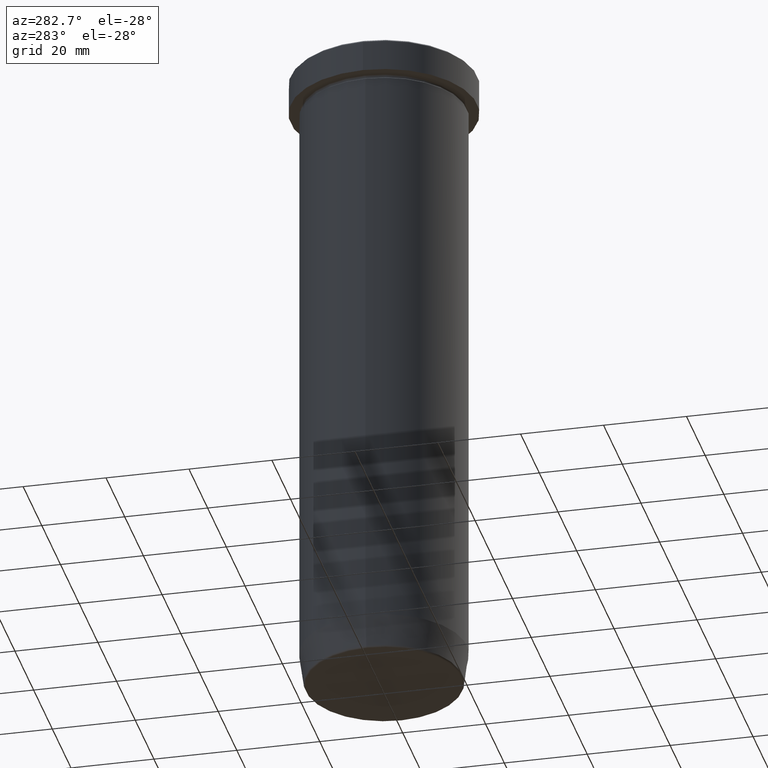
[diagram: clean part render]
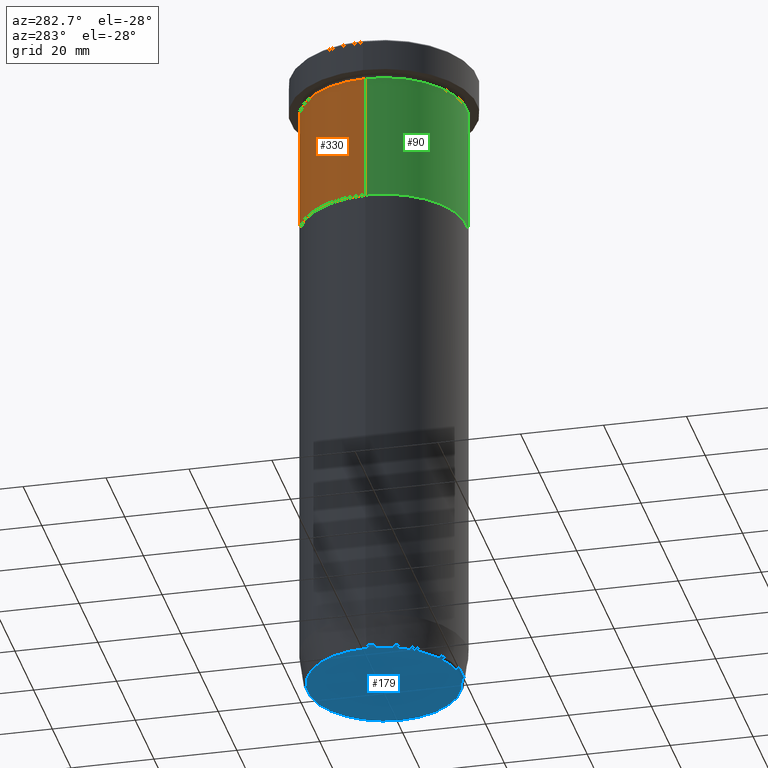
[diagram: same view with three faces highlighted in distinct colors, each labeled with its STEP entity id]
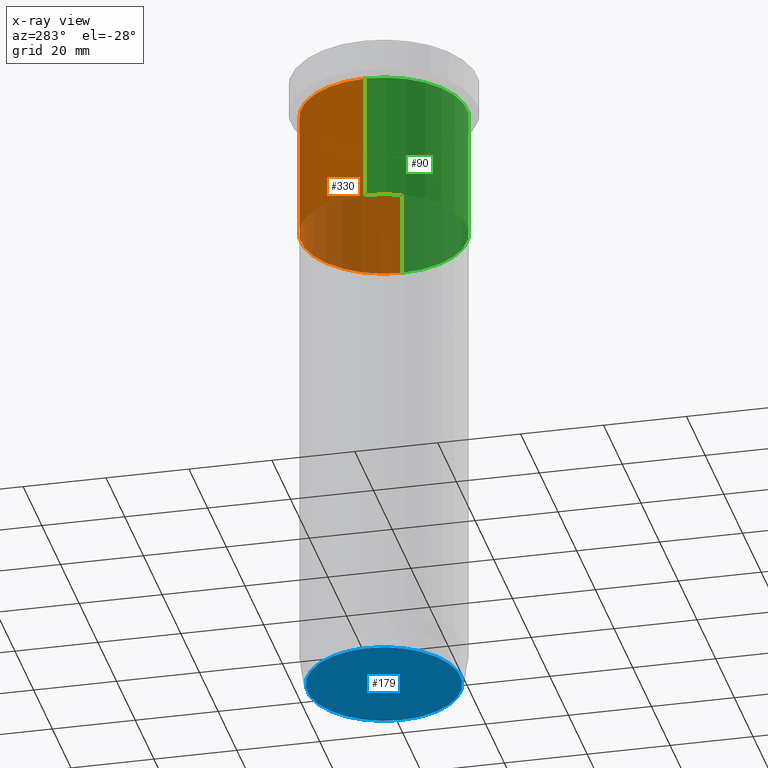
[diagram: x-ray of the same camera — body ghosted, the three highlighted faces saturated]
A machine part, auxiliary view with three faces highlighted in distinct colors.
The next image is the same camera in x-ray (body ghosted, the three faces saturated) — at least one of them is partly hidden behind the body in this view.
Their STEP definitions:

[orange] entity #330 — the highlighted cylindrical surface (partial cylindrical patch) has radius 20 mm, axis along (-0, -0, 1).
#19 = DIRECTION ( 'NONE',  ( -0.000000000000000000, -0.000000000000000000, 1.000000000000000000 ) ) ;
#37 = LINE ( 'NONE', #233, #51 ) ;
#42 = EDGE_CURVE ( 'NONE', #161, #275, #368, .T. ) ;
#51 = VECTOR ( 'NONE', #422, 1000.000000000000000 ) ;
#69 = VERTEX_POINT ( 'NONE', #571 ) ;
#93 = DIRECTION ( 'NONE',  ( -0.000000000000000000, -0.000000000000000000, 1.000000000000000000 ) ) ;
#95 = CYLINDRICAL_SURFACE ( 'NONE', #531, 20.00000000000000000 ) ;
#104 = VERTEX_POINT ( 'NONE', #452 ) ;
#148 = ORIENTED_EDGE ( 'NONE', *, *, #401, .T. ) ;
#153 = CARTESIAN_POINT ( 'NONE',  ( -20.00000000000000000, 2.449293598294706513E-15, 0.000000000000000000 ) ) ;
#161 = VERTEX_POINT ( 'NONE', #207 ) ;
#164 = DIRECTION ( 'NONE',  ( -0.000000000000000000, -0.000000000000000000, 1.000000000000000000 ) ) ;
#207 = CARTESIAN_POINT ( 'NONE',  ( 20.00000000000000000, 0.000000000000000000, -8.999999999999998224 ) ) ;
#213 = CARTESIAN_POINT ( 'NONE',  ( 0.000000000000000000, 0.000000000000000000, -40.00000000000000000 ) ) ;
#215 = DIRECTION ( 'NONE',  ( 1.000000000000000000, 0.000000000000000000, 0.000000000000000000 ) ) ;
#233 = CARTESIAN_POINT ( 'NONE',  ( 20.00000000000000000, 0.000000000000000000, 0.000000000000000000 ) ) ;
#255 = EDGE_LOOP ( 'NONE', ( #529, #148, #489, #425 ) ) ;
#263 = CARTESIAN_POINT ( 'NONE',  ( 0.000000000000000000, 0.000000000000000000, -8.999999999999998224 ) ) ;
#275 = VERTEX_POINT ( 'NONE', #570 ) ;
#289 = DIRECTION ( 'NONE',  ( 1.000000000000000000, 0.000000000000000000, 0.000000000000000000 ) ) ;
#295 = CARTESIAN_POINT ( 'NONE',  ( 0.000000000000000000, 0.000000000000000000, 0.000000000000000000 ) ) ;
#313 = DIRECTION ( 'NONE',  ( 1.000000000000000000, 0.000000000000000000, 0.000000000000000000 ) ) ;
#325 = CIRCLE ( 'NONE', #521, 20.00000000000000000 ) ;
#330 = ADVANCED_FACE ( 'NONE', ( #565 ), #95, .T. ) ;
#335 = EDGE_CURVE ( 'NONE', #104, #161, #37, .T. ) ;
#356 = EDGE_CURVE ( 'NONE', #104, #69, #325, .T. ) ;
#368 = CIRCLE ( 'NONE', #423, 20.00000000000000000 ) ;
#392 = LINE ( 'NONE', #153, #503 ) ;
#401 = EDGE_CURVE ( 'NONE', #69, #275, #392, .T. ) ;
#422 = DIRECTION ( 'NONE',  ( -0.000000000000000000, -0.000000000000000000, 1.000000000000000000 ) ) ;
#423 = AXIS2_PLACEMENT_3D ( 'NONE', #263, #19, #215 ) ;
#425 = ORIENTED_EDGE ( 'NONE', *, *, #335, .F. ) ;
#452 = CARTESIAN_POINT ( 'NONE',  ( 20.00000000000000000, 0.000000000000000000, -40.00000000000000000 ) ) ;
#489 = ORIENTED_EDGE ( 'NONE', *, *, #42, .F. ) ;
#503 = VECTOR ( 'NONE', #164, 1000.000000000000000 ) ;
#521 = AXIS2_PLACEMENT_3D ( 'NONE', #213, #539, #313 ) ;
#529 = ORIENTED_EDGE ( 'NONE', *, *, #356, .T. ) ;
#531 = AXIS2_PLACEMENT_3D ( 'NONE', #295, #93, #289 ) ;
#539 = DIRECTION ( 'NONE',  ( -0.000000000000000000, -0.000000000000000000, 1.000000000000000000 ) ) ;
#565 = FACE_OUTER_BOUND ( 'NONE', #255, .T. ) ;
#570 = CARTESIAN_POINT ( 'NONE',  ( -20.00000000000000000, 2.449293598294706513E-15, -8.999999999999998224 ) ) ;
#571 = CARTESIAN_POINT ( 'NONE',  ( -20.00000000000000000, 2.449293598294706513E-15, -40.00000000000000000 ) ) ;

[blue] entity #179 — the highlighted planar face has unit normal (0, -0, 1).
#13 = FACE_OUTER_BOUND ( 'NONE', #399, .T. ) ;
#27 = CARTESIAN_POINT ( 'NONE',  ( 0.000000000000000000, 0.000000000000000000, -159.9999999999999716 ) ) ;
#29 = AXIS2_PLACEMENT_3D ( 'NONE', #530, #403, #108 ) ;
#89 = DIRECTION ( 'NONE',  ( 1.000000000000000000, 0.000000000000000000, 0.000000000000000000 ) ) ;
#108 = DIRECTION ( 'NONE',  ( 1.000000000000000000, 0.000000000000000000, 0.000000000000000000 ) ) ;
#179 = ADVANCED_FACE ( 'NONE', ( #13 ), #360, .F. ) ;
#218 = DIRECTION ( 'NONE',  ( 1.000000000000000000, 0.000000000000000000, 0.000000000000000000 ) ) ;
#238 = EDGE_CURVE ( 'NONE', #357, #328, #447, .T. ) ;
#244 = AXIS2_PLACEMENT_3D ( 'NONE', #546, #456, #218 ) ;
#257 = CARTESIAN_POINT ( 'NONE',  ( -18.44102995347274998, 2.288693046067141416E-15, -159.9999999999999716 ) ) ;
#269 = ORIENTED_EDGE ( 'NONE', *, *, #238, .T. ) ;
#327 = CIRCLE ( 'NONE', #244, 18.44102995347274998 ) ;
#328 = VERTEX_POINT ( 'NONE', #525 ) ;
#357 = VERTEX_POINT ( 'NONE', #257 ) ;
#360 = PLANE ( 'NONE',  #29 ) ;
#399 = EDGE_LOOP ( 'NONE', ( #428, #269 ) ) ;
#403 = DIRECTION ( 'NONE',  ( 0.000000000000000000, -0.000000000000000000, 1.000000000000000000 ) ) ;
#428 = ORIENTED_EDGE ( 'NONE', *, *, #587, .T. ) ;
#447 = CIRCLE ( 'NONE', #538, 18.44102995347274998 ) ;
#456 = DIRECTION ( 'NONE',  ( 0.000000000000000000, 0.000000000000000000, -1.000000000000000000 ) ) ;
#525 = CARTESIAN_POINT ( 'NONE',  ( 18.44102995347274998, 0.000000000000000000, -159.9999999999999716 ) ) ;
#530 = CARTESIAN_POINT ( 'NONE',  ( 0.000000000000000000, 9.797174393178822896E-15, -159.9999999999999716 ) ) ;
#538 = AXIS2_PLACEMENT_3D ( 'NONE', #27, #557, #89 ) ;
#546 = CARTESIAN_POINT ( 'NONE',  ( 0.000000000000000000, 0.000000000000000000, -159.9999999999999716 ) ) ;
#557 = DIRECTION ( 'NONE',  ( 0.000000000000000000, 0.000000000000000000, -1.000000000000000000 ) ) ;
#587 = EDGE_CURVE ( 'NONE', #328, #357, #327, .T. ) ;

[green] entity #90 — the highlighted cylindrical surface (partial cylindrical patch) has radius 20 mm, axis along (-0, -0, 1).
#17 = CARTESIAN_POINT ( 'NONE',  ( 0.000000000000000000, 0.000000000000000000, -8.999999999999998224 ) ) ;
#37 = LINE ( 'NONE', #233, #51 ) ;
#51 = VECTOR ( 'NONE', #422, 1000.000000000000000 ) ;
#54 = DIRECTION ( 'NONE',  ( -0.000000000000000000, -0.000000000000000000, 1.000000000000000000 ) ) ;
#69 = VERTEX_POINT ( 'NONE', #571 ) ;
#73 = CIRCLE ( 'NONE', #472, 20.00000000000000000 ) ;
#83 = ORIENTED_EDGE ( 'NONE', *, *, #335, .T. ) ;
#90 = ADVANCED_FACE ( 'NONE', ( #468 ), #209, .T. ) ;
#104 = VERTEX_POINT ( 'NONE', #452 ) ;
#110 = DIRECTION ( 'NONE',  ( 1.000000000000000000, 0.000000000000000000, 0.000000000000000000 ) ) ;
#117 = DIRECTION ( 'NONE',  ( -0.000000000000000000, -0.000000000000000000, 1.000000000000000000 ) ) ;
#118 = EDGE_CURVE ( 'NONE', #275, #161, #73, .T. ) ;
#153 = CARTESIAN_POINT ( 'NONE',  ( -20.00000000000000000, 2.449293598294706513E-15, 0.000000000000000000 ) ) ;
#161 = VERTEX_POINT ( 'NONE', #207 ) ;
#164 = DIRECTION ( 'NONE',  ( -0.000000000000000000, -0.000000000000000000, 1.000000000000000000 ) ) ;
#186 = ORIENTED_EDGE ( 'NONE', *, *, #401, .F. ) ;
#207 = CARTESIAN_POINT ( 'NONE',  ( 20.00000000000000000, 0.000000000000000000, -8.999999999999998224 ) ) ;
#209 = CYLINDRICAL_SURFACE ( 'NONE', #267, 20.00000000000000000 ) ;
#214 = EDGE_CURVE ( 'NONE', #69, #104, #563, .T. ) ;
#233 = CARTESIAN_POINT ( 'NONE',  ( 20.00000000000000000, 0.000000000000000000, 0.000000000000000000 ) ) ;
#240 = ORIENTED_EDGE ( 'NONE', *, *, #118, .F. ) ;
#267 = AXIS2_PLACEMENT_3D ( 'NONE', #359, #54, #110 ) ;
#275 = VERTEX_POINT ( 'NONE', #570 ) ;
#303 = DIRECTION ( 'NONE',  ( -0.000000000000000000, -0.000000000000000000, 1.000000000000000000 ) ) ;
#335 = EDGE_CURVE ( 'NONE', #104, #161, #37, .T. ) ;
#359 = CARTESIAN_POINT ( 'NONE',  ( 0.000000000000000000, 0.000000000000000000, 0.000000000000000000 ) ) ;
#364 = CARTESIAN_POINT ( 'NONE',  ( 0.000000000000000000, 0.000000000000000000, -40.00000000000000000 ) ) ;
#392 = LINE ( 'NONE', #153, #503 ) ;
#401 = EDGE_CURVE ( 'NONE', #69, #275, #392, .T. ) ;
#422 = DIRECTION ( 'NONE',  ( -0.000000000000000000, -0.000000000000000000, 1.000000000000000000 ) ) ;
#441 = DIRECTION ( 'NONE',  ( 1.000000000000000000, 0.000000000000000000, 0.000000000000000000 ) ) ;
#442 = EDGE_LOOP ( 'NONE', ( #186, #482, #83, #240 ) ) ;
#452 = CARTESIAN_POINT ( 'NONE',  ( 20.00000000000000000, 0.000000000000000000, -40.00000000000000000 ) ) ;
#458 = DIRECTION ( 'NONE',  ( 1.000000000000000000, 0.000000000000000000, 0.000000000000000000 ) ) ;
#468 = FACE_OUTER_BOUND ( 'NONE', #442, .T. ) ;
#472 = AXIS2_PLACEMENT_3D ( 'NONE', #17, #303, #441 ) ;
#482 = ORIENTED_EDGE ( 'NONE', *, *, #214, .T. ) ;
#503 = VECTOR ( 'NONE', #164, 1000.000000000000000 ) ;
#542 = AXIS2_PLACEMENT_3D ( 'NONE', #364, #117, #458 ) ;
#563 = CIRCLE ( 'NONE', #542, 20.00000000000000000 ) ;
#570 = CARTESIAN_POINT ( 'NONE',  ( -20.00000000000000000, 2.449293598294706513E-15, -8.999999999999998224 ) ) ;
#571 = CARTESIAN_POINT ( 'NONE',  ( -20.00000000000000000, 2.449293598294706513E-15, -40.00000000000000000 ) ) ;